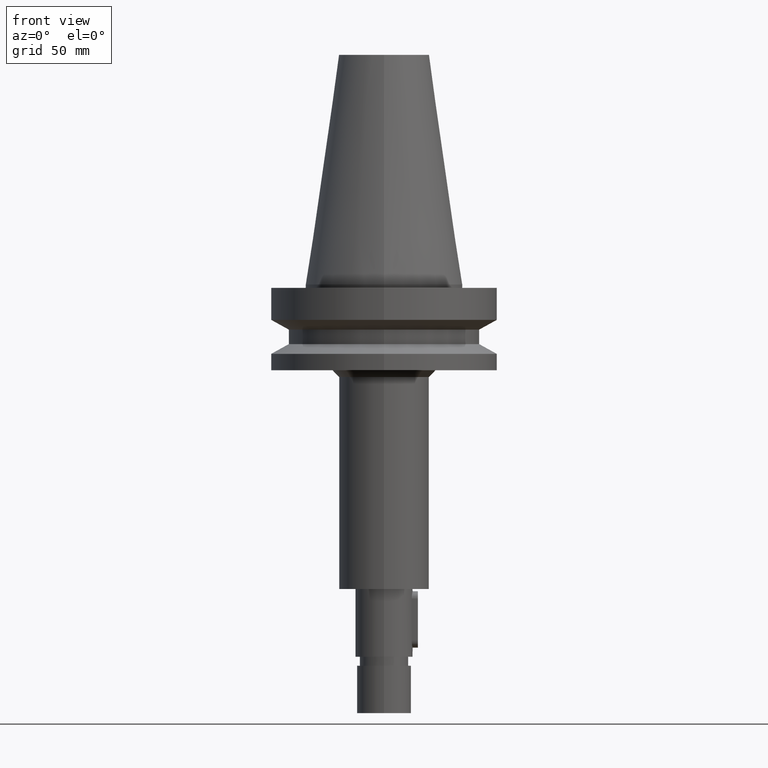
[diagram: clean part render]
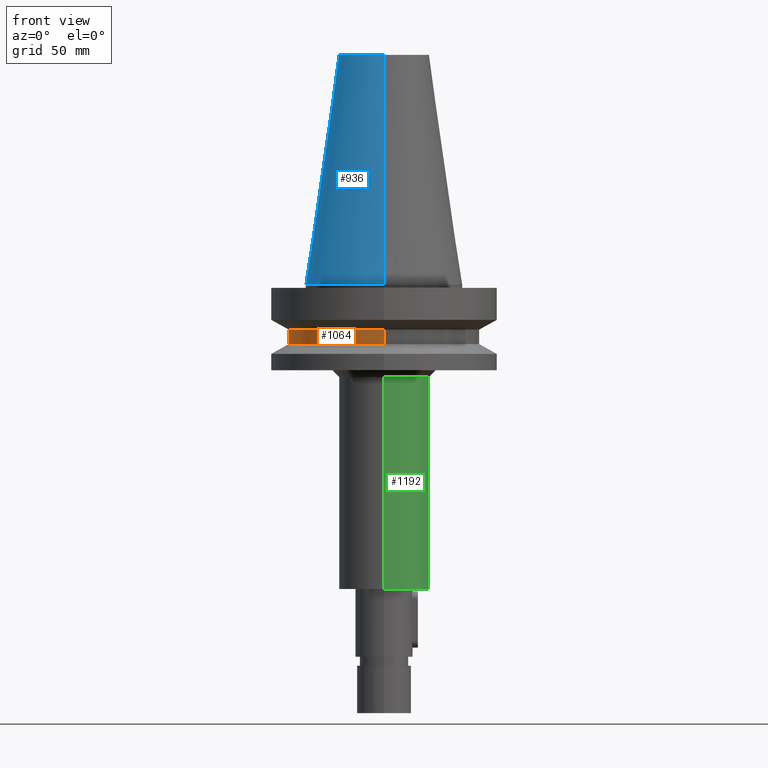
[diagram: same view with three faces highlighted in distinct colors, each labeled with its STEP entity id]
A machine part, front view with three faces highlighted in distinct colors.
Their STEP definitions:

[orange] entity #1064 — the highlighted cylindrical surface (partial cylindrical patch) has radius 42.5 mm, axis along (0, 0, -1).
#231=CARTESIAN_POINT('',(0.E0,1.006319759054E-14,-1.999281925465E1));
#232=DIRECTION('',(0.E0,0.E0,-1.E0));
#233=DIRECTION('',(0.E0,-1.E0,0.E0));
#234=AXIS2_PLACEMENT_3D('',#231,#232,#233);
#262=DIRECTION('',(0.E0,0.E0,-1.E0));
#263=VECTOR('',#262,6.414361490699E0);
#264=CARTESIAN_POINT('',(0.E0,4.25E1,-1.999281925465E1));
#265=LINE('',#264,#263);
#269=DIRECTION('',(0.E0,0.E0,-1.E0));
#270=VECTOR('',#269,6.414361490699E0);
#271=CARTESIAN_POINT('',(0.E0,-4.25E1,-1.999281925465E1));
#272=LINE('',#271,#270);
#276=CARTESIAN_POINT('',(0.E0,0.E0,-2.640718074535E1));
#277=DIRECTION('',(0.E0,0.E0,1.E0));
#278=DIRECTION('',(0.E0,1.E0,0.E0));
#279=AXIS2_PLACEMENT_3D('',#276,#277,#278);
#738=CARTESIAN_POINT('',(0.E0,4.25E1,-1.999281925465E1));
#739=VERTEX_POINT('',#738);
#740=CARTESIAN_POINT('',(0.E0,-4.25E1,-1.999281925465E1));
#741=VERTEX_POINT('',#740);
#742=CARTESIAN_POINT('',(0.E0,4.25E1,-2.640718074535E1));
#743=VERTEX_POINT('',#742);
#744=CARTESIAN_POINT('',(1.040949779275E-14,-4.25E1,-2.640718074535E1));
#745=VERTEX_POINT('',#744);
#1052=CARTESIAN_POINT('',(0.E0,2.650013208675E-14,1.1639E2));
#1053=DIRECTION('',(0.E0,0.E0,-1.E0));
#1054=DIRECTION('',(0.E0,-1.E0,0.E0));
#1055=AXIS2_PLACEMENT_3D('',#1052,#1053,#1054);
#1056=CYLINDRICAL_SURFACE('',#1055,4.25E1);
#1057=ORIENTED_EDGE('',*,*,#1042,.F.);
#1058=ORIENTED_EDGE('',*,*,#1019,.F.);
#1059=ORIENTED_EDGE('',*,*,#1046,.T.);
#1061=ORIENTED_EDGE('',*,*,#1060,.F.);
#1062=EDGE_LOOP('',(#1057,#1058,#1059,#1061));
#1063=FACE_OUTER_BOUND('',#1062,.F.);
#235=CIRCLE('',#234,4.25E1);
#280=CIRCLE('',#279,4.25E1);
#1019=EDGE_CURVE('',#741,#739,#235,.T.);
#1042=EDGE_CURVE('',#739,#743,#265,.T.);
#1046=EDGE_CURVE('',#741,#745,#272,.T.);
#1060=EDGE_CURVE('',#743,#745,#280,.T.);
#1064=ADVANCED_FACE('',(#1063),#1056,.T.);

[blue] entity #936 — the highlighted conical surface has half-angle 8.297 deg.
#102=CARTESIAN_POINT('',(0.E0,1.847992019913E-14,1.018E2));
#103=DIRECTION('',(0.E0,0.E0,-1.E0));
#104=DIRECTION('',(0.E0,-1.E0,0.E0));
#105=AXIS2_PLACEMENT_3D('',#102,#103,#104);
#126=DIRECTION('',(0.E0,1.443043893539E-1,-9.895333461856E-1));
#127=VECTOR('',#126,1.028767755957E2);
#128=CARTESIAN_POINT('',(0.E0,2.007942971896E1,1.018E2));
#129=LINE('',#128,#127);
#141=DIRECTION('',(0.E0,-1.443043893539E-1,-9.895333461856E-1));
#142=VECTOR('',#141,1.028767755957E2);
#143=CARTESIAN_POINT('',(0.E0,-2.007942971896E1,1.018E2));
#144=LINE('',#143,#142);
#148=CARTESIAN_POINT('',(0.E0,1.847992019913E-14,3.979039320257E-13));
#149=DIRECTION('',(0.E0,0.E0,-1.E0));
#150=DIRECTION('',(0.E0,-1.E0,0.E0));
#151=AXIS2_PLACEMENT_3D('',#148,#149,#150);
#718=CARTESIAN_POINT('',(0.E0,2.007942971896E1,1.018E2));
#719=CARTESIAN_POINT('',(0.E0,-2.007942971896E1,1.018E2));
#720=VERTEX_POINT('',#718);
#721=VERTEX_POINT('',#719);
#722=CARTESIAN_POINT('',(0.E0,3.4925E1,5.400124791777E-13));
#723=VERTEX_POINT('',#722);
#724=CARTESIAN_POINT('',(0.E0,-3.4925E1,3.979039320257E-13));
#725=VERTEX_POINT('',#724);
#924=CARTESIAN_POINT('',(0.E0,1.847992019913E-14,5.09E1));
#925=DIRECTION('',(0.E0,0.E0,-1.E0));
#926=DIRECTION('',(0.E0,-1.E0,0.E0));
#927=AXIS2_PLACEMENT_3D('',#924,#925,#926);
#928=CONICAL_SURFACE('',#927,2.750221485948E1,8.297E0);
#929=ORIENTED_EDGE('',*,*,#914,.F.);
#930=ORIENTED_EDGE('',*,*,#900,.F.);
#931=ORIENTED_EDGE('',*,*,#918,.T.);
#933=ORIENTED_EDGE('',*,*,#932,.T.);
#934=EDGE_LOOP('',(#929,#930,#931,#933));
#935=FACE_OUTER_BOUND('',#934,.F.);
#106=CIRCLE('',#105,2.007942971896E1);
#152=CIRCLE('',#151,3.4925E1);
#900=EDGE_CURVE('',#721,#720,#106,.T.);
#914=EDGE_CURVE('',#720,#723,#129,.T.);
#918=EDGE_CURVE('',#721,#725,#144,.T.);
#932=EDGE_CURVE('',#725,#723,#152,.T.);
#936=ADVANCED_FACE('',(#935),#928,.T.);

[green] entity #1192 — the highlighted cylindrical surface (partial cylindrical patch) has radius 20 mm, axis along (0, 0, -1).
#375=CARTESIAN_POINT('',(0.E0,0.E0,-4.1E1));
#376=DIRECTION('',(0.E0,0.E0,-1.E0));
#377=DIRECTION('',(0.E0,1.E0,0.E0));
#378=AXIS2_PLACEMENT_3D('',#375,#376,#377);
#398=DIRECTION('',(0.E0,0.E0,-1.E0));
#399=VECTOR('',#398,9.4E1);
#400=CARTESIAN_POINT('',(0.E0,-2.E1,-4.1E1));
#401=LINE('',#400,#399);
#405=DIRECTION('',(0.E0,0.E0,-1.E0));
#406=VECTOR('',#405,9.4E1);
#407=CARTESIAN_POINT('',(0.E0,2.E1,-4.1E1));
#408=LINE('',#407,#406);
#420=CARTESIAN_POINT('',(0.E0,2.650013208675E-14,-1.35E2));
#421=DIRECTION('',(0.E0,0.E0,1.E0));
#422=DIRECTION('',(0.E0,-1.E0,0.E0));
#423=AXIS2_PLACEMENT_3D('',#420,#421,#422);
#758=CARTESIAN_POINT('',(0.E0,2.E1,-4.1E1));
#759=VERTEX_POINT('',#758);
#760=CARTESIAN_POINT('',(0.E0,-2.E1,-4.1E1));
#761=VERTEX_POINT('',#760);
#762=CARTESIAN_POINT('',(0.E0,2.E1,-1.35E2));
#763=VERTEX_POINT('',#762);
#764=CARTESIAN_POINT('',(0.E0,-2.E1,-1.35E2));
#765=VERTEX_POINT('',#764);
#1180=CARTESIAN_POINT('',(0.E0,2.650013208675E-14,1.1639E2));
#1181=DIRECTION('',(0.E0,0.E0,-1.E0));
#1182=DIRECTION('',(0.E0,-1.E0,0.E0));
#1183=AXIS2_PLACEMENT_3D('',#1180,#1181,#1182);
#1184=CYLINDRICAL_SURFACE('',#1183,2.E1);
#1185=ORIENTED_EDGE('',*,*,#1170,.T.);
#1187=ORIENTED_EDGE('',*,*,#1186,.F.);
#1188=ORIENTED_EDGE('',*,*,#1173,.F.);
#1189=ORIENTED_EDGE('',*,*,#1144,.F.);
#1190=EDGE_LOOP('',(#1185,#1187,#1188,#1189));
#1191=FACE_OUTER_BOUND('',#1190,.F.);
#379=CIRCLE('',#378,2.E1);
#424=CIRCLE('',#423,2.E1);
#1144=EDGE_CURVE('',#759,#761,#379,.T.);
#1170=EDGE_CURVE('',#759,#763,#408,.T.);
#1173=EDGE_CURVE('',#761,#765,#401,.T.);
#1186=EDGE_CURVE('',#765,#763,#424,.T.);
#1192=ADVANCED_FACE('',(#1191),#1184,.T.);